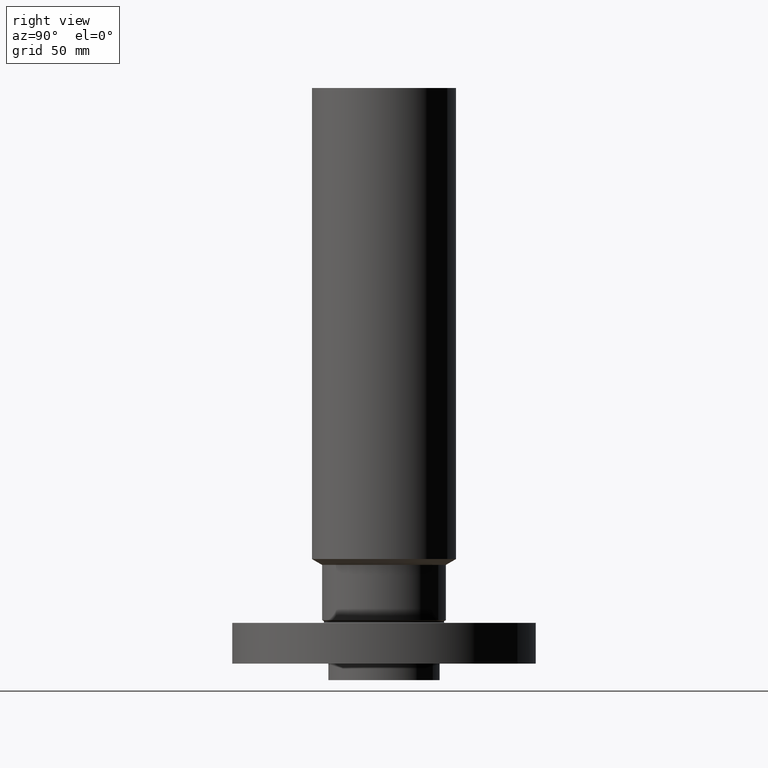
[diagram: clean part render]
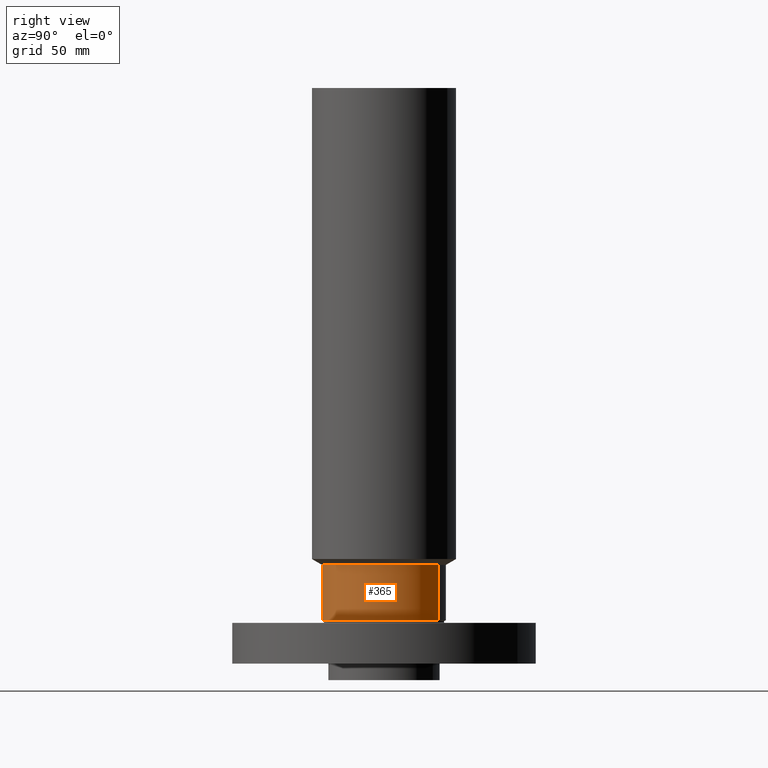
[diagram: same view with one face highlighted and labeled with its STEP entity id]
A machine part, right view. The second image highlights one B-rep face of the part: STEP entity #365.
In plain terms, the highlighted cylindrical surface (partial cylindrical patch) has radius 23.876 mm, axis along (0, 0, -1).
Its self-contained STEP definition (entity closure, byte-faithful):
#306=AXIS2_PLACEMENT_3D('Circle Axis2P3D',#304,#305,$) ;
#338=AXIS2_PLACEMENT_3D('Cylinder Axis2P3D',#335,#336,#337) ;
#349=AXIS2_PLACEMENT_3D('Circle Axis2P3D',#347,#348,$) ;
#301=CARTESIAN_POINT('Vertex',(0.45066000629,0.82492760818,0.660980762116)) ;
#304=CARTESIAN_POINT('Axis2P3D Location',(0.,0.,0.660980762116)) ;
#308=CARTESIAN_POINT('Vertex',(-0.45066000629,-0.82492760818,0.660980762116)) ;
#335=CARTESIAN_POINT('Axis2P3D Location',(0.,0.,4.25000000002)) ;
#340=CARTESIAN_POINT('Line Origine',(0.45066000629,0.82492760818,1.08049038106)) ;
#344=CARTESIAN_POINT('Vertex',(0.45066000629,0.82492760818,1.50000000001)) ;
#347=CARTESIAN_POINT('Axis2P3D Location',(0.,0.,1.50000000001)) ;
#351=CARTESIAN_POINT('Vertex',(-0.45066000629,-0.82492760818,1.50000000001)) ;
#354=CARTESIAN_POINT('Line Origine',(-0.45066000629,-0.82492760818,1.08049038106)) ;
#305=DIRECTION('Axis2P3D Direction',(-0.,0.,0.0393700787402)) ;
#336=DIRECTION('Axis2P3D Direction',(0.,0.,-0.0393700787402)) ;
#337=DIRECTION('Axis2P3D XDirection',(-0.0188750212049,-0.0345504945626,0.)) ;
#341=DIRECTION('Vector Direction',(0.,0.,-0.0393700787402)) ;
#348=DIRECTION('Axis2P3D Direction',(0.,0.,-0.0393700787402)) ;
#355=DIRECTION('Vector Direction',(0.,0.,-0.0393700787402)) ;
#342=VECTOR('Line Direction',#341,0.0393700787402) ;
#356=VECTOR('Line Direction',#355,0.0393700787402) ;
#360=ORIENTED_EDGE('',*,*,#310,.F.) ;
#361=ORIENTED_EDGE('',*,*,#346,.T.) ;
#362=ORIENTED_EDGE('',*,*,#353,.T.) ;
#363=ORIENTED_EDGE('',*,*,#358,.F.) ;
#365=ADVANCED_FACE('PartBody',(#364),#339,.T.) ;
#307=CIRCLE('generated circle',#306,0.940000000004) ;
#350=CIRCLE('generated circle',#349,0.940000000004) ;
#339=CYLINDRICAL_SURFACE('generated cylinder',#338,0.940000000004) ;
#310=EDGE_CURVE('',#302,#309,#307,.F.) ;
#346=EDGE_CURVE('',#302,#345,#343,.F.) ;
#353=EDGE_CURVE('',#345,#352,#350,.T.) ;
#358=EDGE_CURVE('',#309,#352,#357,.F.) ;
#359=EDGE_LOOP('',(#360,#361,#362,#363)) ;
#364=FACE_OUTER_BOUND('',#359,.T.) ;
#343=LINE('Line',#340,#342) ;
#357=LINE('Line',#354,#356) ;
#302=VERTEX_POINT('',#301) ;
#309=VERTEX_POINT('',#308) ;
#345=VERTEX_POINT('',#344) ;
#352=VERTEX_POINT('',#351) ;